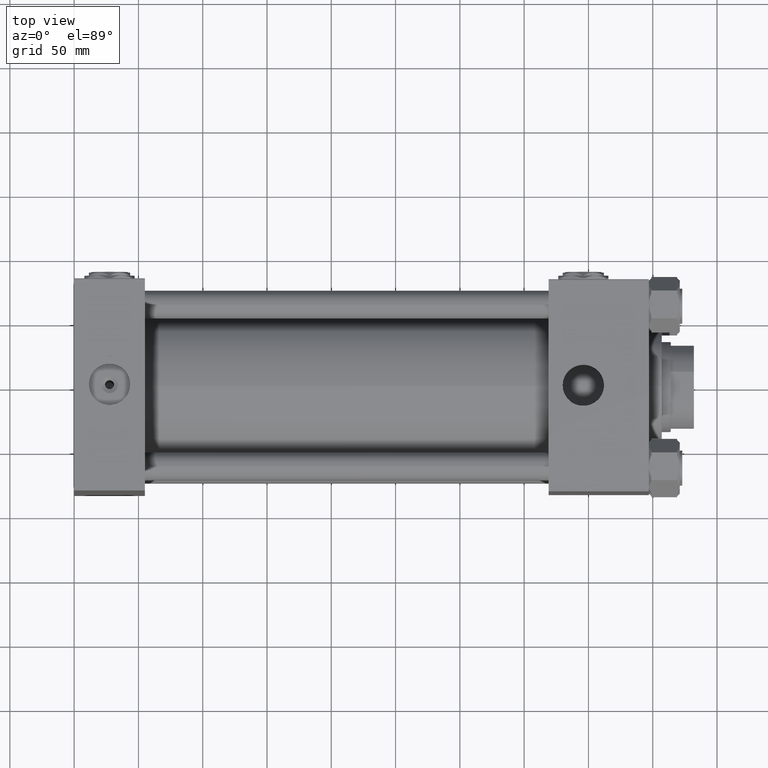
[diagram: clean part render]
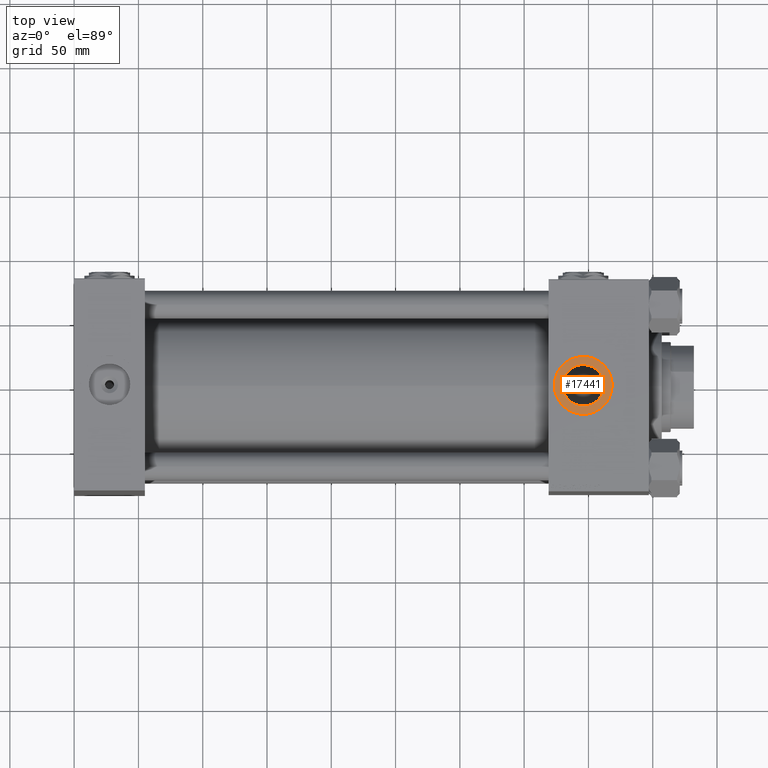
[diagram: same view with one face highlighted and labeled with its STEP entity id]
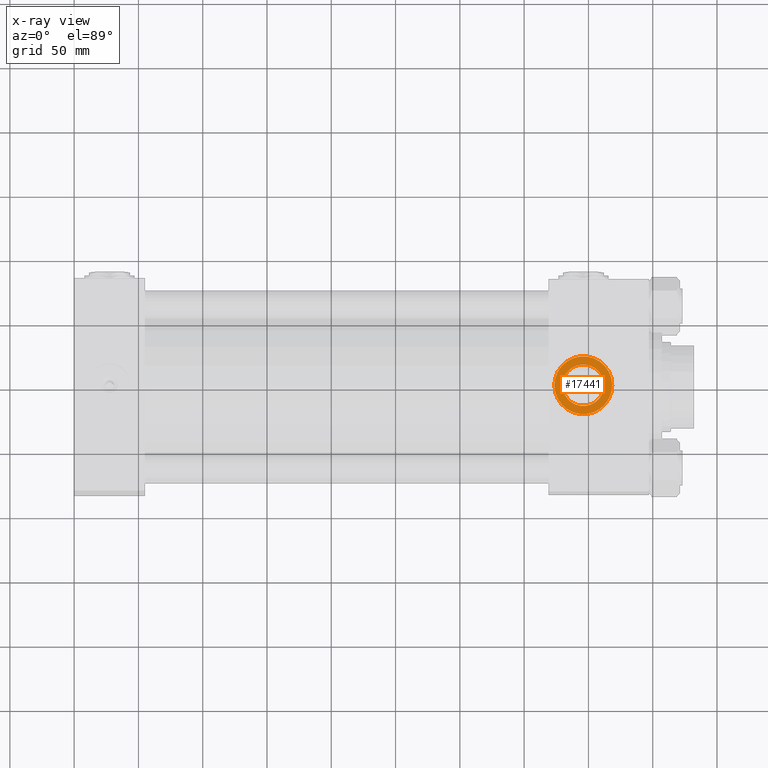
[diagram: x-ray of the same camera — body ghosted, the highlighted face saturated]
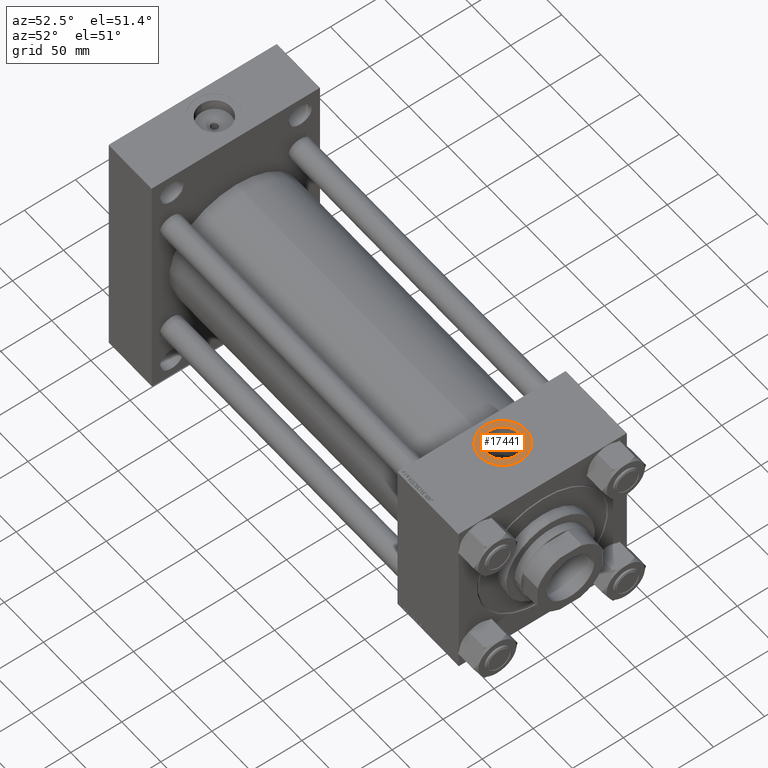
[diagram: same view with one face highlighted and labeled with its STEP entity id]
A machine part, top view. The second image highlights one B-rep face of the part: STEP entity #17441.
The next image is the same camera in x-ray: the body ghosted, the highlighted face saturated — about 0% of this face is hidden behind the body in this view.
A second angle (auxiliary view) of the same face is appended — the face is thin or edge-on in the first view.
In plain terms, the highlighted planar face has unit normal (0, 0, 1).
Its self-contained STEP definition (entity closure, byte-faithful):
#487 = DIRECTION ( 'NONE',  ( 0.000000000000000000, 0.000000000000000000, 1.000000000000000000 ) ) ;
#1425 = ORIENTED_EDGE ( 'NONE', *, *, #38585, .F. ) ;
#1885 = CIRCLE ( 'NONE', #20605, 22.50000000000002132 ) ;
#2475 = FACE_OUTER_BOUND ( 'NONE', #11344, .T. ) ;
#2487 = VERTEX_POINT ( 'NONE', #50438 ) ;
#4998 = CARTESIAN_POINT ( 'NONE',  ( 396.0000000000000000, -1.387778780781445676E-14, 82.29999999999998295 ) ) ;
#5936 = DIRECTION ( 'NONE',  ( 0.000000000000000000, 0.000000000000000000, 1.000000000000000000 ) ) ;
#8295 = CIRCLE ( 'NONE', #18493, 16.12000000000002231 ) ;
#8670 = DIRECTION ( 'NONE',  ( 0.000000000000000000, 0.000000000000000000, 1.000000000000000000 ) ) ;
#9025 = ORIENTED_EDGE ( 'NONE', *, *, #50103, .T. ) ;
#9347 = AXIS2_PLACEMENT_3D ( 'NONE', #4998, #487, #16985 ) ;
#11344 = EDGE_LOOP ( 'NONE', ( #51565, #9025 ) ) ;
#12914 = EDGE_LOOP ( 'NONE', ( #20288, #1425 ) ) ;
#13420 = CARTESIAN_POINT ( 'NONE',  ( 396.0000000000000000, -1.387778780781445676E-14, 82.29999999999998295 ) ) ;
#14653 = VERTEX_POINT ( 'NONE', #47082 ) ;
#16985 = DIRECTION ( 'NONE',  ( 1.000000000000000000, 0.000000000000000000, 0.000000000000000000 ) ) ;
#17178 = CARTESIAN_POINT ( 'NONE',  ( 396.0000000000000000, -1.387778780781445676E-14, 82.29999999999998295 ) ) ;
#17290 = VERTEX_POINT ( 'NONE', #34564 ) ;
#17441 = ADVANCED_FACE ( 'NONE', ( #26191, #2475 ), #38959, .T. ) ;
#18439 = CARTESIAN_POINT ( 'NONE',  ( 396.0000000000000000, -1.387778780781445676E-14, 82.29999999999998295 ) ) ;
#18493 = AXIS2_PLACEMENT_3D ( 'NONE', #17178, #8670, #36898 ) ;
#19897 = CIRCLE ( 'NONE', #47231, 22.50000000000002132 ) ;
#20288 = ORIENTED_EDGE ( 'NONE', *, *, #24066, .F. ) ;
#20605 = AXIS2_PLACEMENT_3D ( 'NONE', #50847, #35433, #42619 ) ;
#21661 = DIRECTION ( 'NONE',  ( 0.000000000000000000, 0.000000000000000000, 1.000000000000000000 ) ) ;
#23503 = AXIS2_PLACEMENT_3D ( 'NONE', #13420, #21661, #29670 ) ;
#24066 = EDGE_CURVE ( 'NONE', #17290, #14653, #8295, .T. ) ;
#25799 = VERTEX_POINT ( 'NONE', #32385 ) ;
#26191 = FACE_BOUND ( 'NONE', #12914, .T. ) ;
#29670 = DIRECTION ( 'NONE',  ( 1.000000000000000000, 0.000000000000000000, -0.000000000000000000 ) ) ;
#32385 = CARTESIAN_POINT ( 'NONE',  ( 418.5000000000000568, -1.387778780781445676E-14, 82.29999999999998295 ) ) ;
#34431 = DIRECTION ( 'NONE',  ( 1.000000000000000000, 0.000000000000000000, 0.000000000000000000 ) ) ;
#34564 = CARTESIAN_POINT ( 'NONE',  ( 412.1200000000000614, -1.387778780781445676E-14, 82.29999999999998295 ) ) ;
#35433 = DIRECTION ( 'NONE',  ( 0.000000000000000000, 0.000000000000000000, 1.000000000000000000 ) ) ;
#36898 = DIRECTION ( 'NONE',  ( 1.000000000000000000, 0.000000000000000000, 0.000000000000000000 ) ) ;
#38585 = EDGE_CURVE ( 'NONE', #14653, #17290, #47740, .T. ) ;
#38959 = PLANE ( 'NONE',  #23503 ) ;
#42619 = DIRECTION ( 'NONE',  ( 1.000000000000000000, 0.000000000000000000, 0.000000000000000000 ) ) ;
#42980 = EDGE_CURVE ( 'NONE', #25799, #2487, #1885, .T. ) ;
#47082 = CARTESIAN_POINT ( 'NONE',  ( 379.8799999999999955, -1.190365716758891721E-14, 82.29999999999998295 ) ) ;
#47231 = AXIS2_PLACEMENT_3D ( 'NONE', #18439, #5936, #34431 ) ;
#47740 = CIRCLE ( 'NONE', #9347, 16.12000000000002231 ) ;
#50103 = EDGE_CURVE ( 'NONE', #2487, #25799, #19897, .T. ) ;
#50438 = CARTESIAN_POINT ( 'NONE',  ( 373.5000000000000000, -1.112233250973290646E-14, 82.29999999999998295 ) ) ;
#50847 = CARTESIAN_POINT ( 'NONE',  ( 396.0000000000000000, -1.387778780781445676E-14, 82.29999999999998295 ) ) ;
#51565 = ORIENTED_EDGE ( 'NONE', *, *, #42980, .T. ) ;